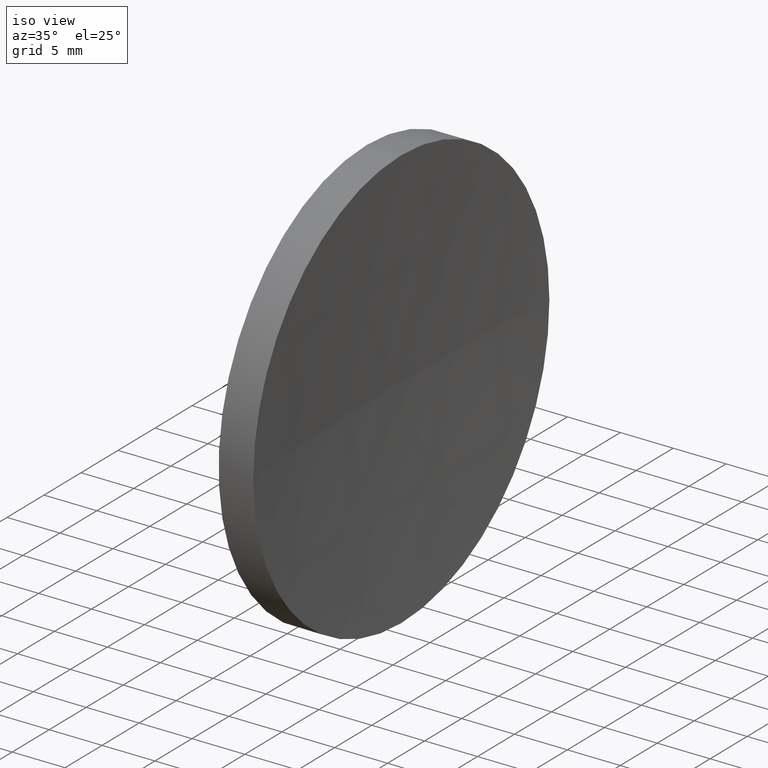
[diagram: clean part render]
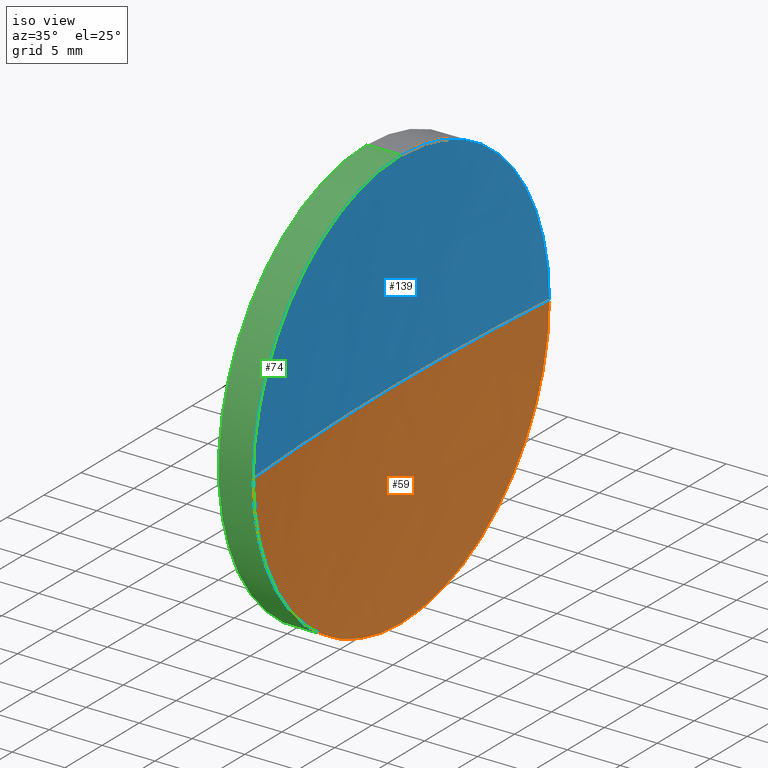
[diagram: same view with three faces highlighted in distinct colors, each labeled with its STEP entity id]
A machine part, iso view with three faces highlighted in distinct colors.
Their STEP definitions:

[orange] entity #59 — the highlighted spherical surface has radius 258.18 mm.
#5 = EDGE_LOOP ( 'NONE', ( #26, #124, #7, #47 ) ) ;
#7 = ORIENTED_EDGE ( 'NONE', *, *, #104, .F. ) ;
#11 = CARTESIAN_POINT ( 'NONE',  ( 117.1877506669351400, 65.15563045701519200, -20.00000000000000400 ) ) ;
#14 = FACE_OUTER_BOUND ( 'NONE', #5, .T. ) ;
#17 = AXIS2_PLACEMENT_3D ( 'NONE', #35, #71, #172 ) ;
#18 = CARTESIAN_POINT ( 'NONE',  ( 374.5919316741596400, 65.15563045701524900, 0.0000000000000000000 ) ) ;
#26 = ORIENTED_EDGE ( 'NONE', *, *, #51, .F. ) ;
#27 = CARTESIAN_POINT ( 'NONE',  ( 117.1877506669351400, 65.15563045701519200, 0.0000000000000000000 ) ) ;
#35 = CARTESIAN_POINT ( 'NONE',  ( 374.5919316741596400, 65.15563045701524900, 0.0000000000000000000 ) ) ;
#39 = DIRECTION ( 'NONE',  ( 0.0000000000000000000, 0.0000000000000000000, 1.000000000000000000 ) ) ;
#44 = SPHERICAL_SURFACE ( 'NONE', #65, 258.1799999999999500 ) ;
#47 = ORIENTED_EDGE ( 'NONE', *, *, #98, .F. ) ;
#51 = EDGE_CURVE ( 'NONE', #130, #140, #100, .T. ) ;
#53 = DIRECTION ( 'NONE',  ( 0.0000000000000000000, 0.0000000000000000000, 1.000000000000000000 ) ) ;
#56 = CIRCLE ( 'NONE', #111, 258.1799999999999500 ) ;
#59 = ADVANCED_FACE ( 'NONE', ( #14 ), #44, .F. ) ;
#65 = AXIS2_PLACEMENT_3D ( 'NONE', #103, #131, #114 ) ;
#67 = DIRECTION ( 'NONE',  ( -1.000000000000000000, -0.0000000000000000000, -0.0000000000000000000 ) ) ;
#71 = DIRECTION ( 'NONE',  ( 0.0000000000000000000, -1.224646799147353200E-016, 1.000000000000000000 ) ) ;
#73 = CARTESIAN_POINT ( 'NONE',  ( 117.1877506669351600, 85.15563045701502200, 2.449293598294677700E-015 ) ) ;
#86 = CIRCLE ( 'NONE', #17, 258.1799999999999500 ) ;
#98 = EDGE_CURVE ( 'NONE', #140, #109, #166, .T. ) ;
#100 = CIRCLE ( 'NONE', #112, 20.00000000000000400 ) ;
#103 = CARTESIAN_POINT ( 'NONE',  ( 374.5919316741596400, 65.15563045701524900, 0.0000000000000000000 ) ) ;
#104 = EDGE_CURVE ( 'NONE', #109, #183, #56, .T. ) ;
#109 = VERTEX_POINT ( 'NONE', #132 ) ;
#110 = EDGE_CURVE ( 'NONE', #130, #183, #86, .T. ) ;
#111 = AXIS2_PLACEMENT_3D ( 'NONE', #18, #182, #162 ) ;
#112 = AXIS2_PLACEMENT_3D ( 'NONE', #115, #67, #53 ) ;
#114 = DIRECTION ( 'NONE',  ( 0.0000000000000000000, -1.000000000000000000, 0.0000000000000000000 ) ) ;
#115 = CARTESIAN_POINT ( 'NONE',  ( 117.1877506669351400, 65.15563045701519200, 0.0000000000000000000 ) ) ;
#124 = ORIENTED_EDGE ( 'NONE', *, *, #110, .T. ) ;
#127 = CARTESIAN_POINT ( 'NONE',  ( 116.4119316741597000, 65.15563045701523500, 0.0000000000000000000 ) ) ;
#130 = VERTEX_POINT ( 'NONE', #73 ) ;
#131 = DIRECTION ( 'NONE',  ( 0.0000000000000000000, 0.0000000000000000000, 1.000000000000000000 ) ) ;
#132 = CARTESIAN_POINT ( 'NONE',  ( 117.1877506669351600, 45.15563045701542700, 0.0000000000000000000 ) ) ;
#140 = VERTEX_POINT ( 'NONE', #11 ) ;
#147 = DIRECTION ( 'NONE',  ( -1.000000000000000000, -0.0000000000000000000, -0.0000000000000000000 ) ) ;
#151 = AXIS2_PLACEMENT_3D ( 'NONE', #27, #147, #39 ) ;
#162 = DIRECTION ( 'NONE',  ( -1.000000000000000000, 0.0000000000000000000, 0.0000000000000000000 ) ) ;
#166 = CIRCLE ( 'NONE', #151, 20.00000000000000400 ) ;
#172 = DIRECTION ( 'NONE',  ( 0.0000000000000000000, -1.000000000000000000, -1.224646799147353200E-016 ) ) ;
#182 = DIRECTION ( 'NONE',  ( 0.0000000000000000000, 0.0000000000000000000, -1.000000000000000000 ) ) ;
#183 = VERTEX_POINT ( 'NONE', #127 ) ;

[blue] entity #139 — the highlighted spherical surface has radius 258.18 mm.
#15 = ORIENTED_EDGE ( 'NONE', *, *, #104, .T. ) ;
#16 = CARTESIAN_POINT ( 'NONE',  ( 374.5919316741596400, 65.15563045701524900, 0.0000000000000000000 ) ) ;
#17 = AXIS2_PLACEMENT_3D ( 'NONE', #35, #71, #172 ) ;
#18 = CARTESIAN_POINT ( 'NONE',  ( 374.5919316741596400, 65.15563045701524900, 0.0000000000000000000 ) ) ;
#19 = FACE_OUTER_BOUND ( 'NONE', #60, .T. ) ;
#25 = CIRCLE ( 'NONE', #38, 20.00000000000000400 ) ;
#29 = CARTESIAN_POINT ( 'NONE',  ( 117.1877506669351400, 65.15563045701519200, 20.00000000000000400 ) ) ;
#30 = CARTESIAN_POINT ( 'NONE',  ( 117.1877506669351400, 65.15563045701519200, 0.0000000000000000000 ) ) ;
#35 = CARTESIAN_POINT ( 'NONE',  ( 374.5919316741596400, 65.15563045701524900, 0.0000000000000000000 ) ) ;
#38 = AXIS2_PLACEMENT_3D ( 'NONE', #30, #62, #118 ) ;
#42 = ORIENTED_EDGE ( 'NONE', *, *, #133, .F. ) ;
#49 = SPHERICAL_SURFACE ( 'NONE', #155, 258.1799999999999500 ) ;
#54 = ORIENTED_EDGE ( 'NONE', *, *, #110, .F. ) ;
#56 = CIRCLE ( 'NONE', #111, 258.1799999999999500 ) ;
#60 = EDGE_LOOP ( 'NONE', ( #54, #84, #42, #15 ) ) ;
#62 = DIRECTION ( 'NONE',  ( -1.000000000000000000, -0.0000000000000000000, -0.0000000000000000000 ) ) ;
#63 = CIRCLE ( 'NONE', #149, 20.00000000000000400 ) ;
#71 = DIRECTION ( 'NONE',  ( 0.0000000000000000000, -1.224646799147353200E-016, 1.000000000000000000 ) ) ;
#73 = CARTESIAN_POINT ( 'NONE',  ( 117.1877506669351600, 85.15563045701502200, 2.449293598294677700E-015 ) ) ;
#84 = ORIENTED_EDGE ( 'NONE', *, *, #91, .F. ) ;
#86 = CIRCLE ( 'NONE', #17, 258.1799999999999500 ) ;
#91 = EDGE_CURVE ( 'NONE', #101, #130, #63, .T. ) ;
#96 = DIRECTION ( 'NONE',  ( 0.0000000000000000000, 0.0000000000000000000, 1.000000000000000000 ) ) ;
#97 = DIRECTION ( 'NONE',  ( 0.0000000000000000000, -1.000000000000000000, 0.0000000000000000000 ) ) ;
#101 = VERTEX_POINT ( 'NONE', #29 ) ;
#104 = EDGE_CURVE ( 'NONE', #109, #183, #56, .T. ) ;
#109 = VERTEX_POINT ( 'NONE', #132 ) ;
#110 = EDGE_CURVE ( 'NONE', #130, #183, #86, .T. ) ;
#111 = AXIS2_PLACEMENT_3D ( 'NONE', #18, #182, #162 ) ;
#117 = DIRECTION ( 'NONE',  ( -1.000000000000000000, -0.0000000000000000000, -0.0000000000000000000 ) ) ;
#118 = DIRECTION ( 'NONE',  ( 0.0000000000000000000, 0.0000000000000000000, 1.000000000000000000 ) ) ;
#127 = CARTESIAN_POINT ( 'NONE',  ( 116.4119316741597000, 65.15563045701523500, 0.0000000000000000000 ) ) ;
#130 = VERTEX_POINT ( 'NONE', #73 ) ;
#132 = CARTESIAN_POINT ( 'NONE',  ( 117.1877506669351600, 45.15563045701542700, 0.0000000000000000000 ) ) ;
#133 = EDGE_CURVE ( 'NONE', #109, #101, #25, .T. ) ;
#139 = ADVANCED_FACE ( 'NONE', ( #19 ), #49, .F. ) ;
#149 = AXIS2_PLACEMENT_3D ( 'NONE', #161, #117, #174 ) ;
#155 = AXIS2_PLACEMENT_3D ( 'NONE', #16, #96, #97 ) ;
#161 = CARTESIAN_POINT ( 'NONE',  ( 117.1877506669351400, 65.15563045701519200, 0.0000000000000000000 ) ) ;
#162 = DIRECTION ( 'NONE',  ( -1.000000000000000000, 0.0000000000000000000, 0.0000000000000000000 ) ) ;
#172 = DIRECTION ( 'NONE',  ( 0.0000000000000000000, -1.000000000000000000, -1.224646799147353200E-016 ) ) ;
#174 = DIRECTION ( 'NONE',  ( 0.0000000000000000000, 0.0000000000000000000, 1.000000000000000000 ) ) ;
#182 = DIRECTION ( 'NONE',  ( 0.0000000000000000000, 0.0000000000000000000, -1.000000000000000000 ) ) ;
#183 = VERTEX_POINT ( 'NONE', #127 ) ;

[green] entity #74 — the highlighted cylindrical surface (partial cylindrical patch) has radius 20 mm, axis along (-1, -0, -0).
#6 = EDGE_LOOP ( 'NONE', ( #168, #21, #88, #176, #143 ) ) ;
#8 = DIRECTION ( 'NONE',  ( -1.000000000000000000, -0.0000000000000000000, -0.0000000000000000000 ) ) ;
#11 = CARTESIAN_POINT ( 'NONE',  ( 117.1877506669351400, 65.15563045701519200, -20.00000000000000400 ) ) ;
#13 = LINE ( 'NONE', #184, #175 ) ;
#21 = ORIENTED_EDGE ( 'NONE', *, *, #98, .T. ) ;
#25 = CIRCLE ( 'NONE', #38, 20.00000000000000400 ) ;
#27 = CARTESIAN_POINT ( 'NONE',  ( 117.1877506669351400, 65.15563045701519200, 0.0000000000000000000 ) ) ;
#29 = CARTESIAN_POINT ( 'NONE',  ( 117.1877506669351400, 65.15563045701519200, 20.00000000000000400 ) ) ;
#30 = CARTESIAN_POINT ( 'NONE',  ( 117.1877506669351400, 65.15563045701519200, 0.0000000000000000000 ) ) ;
#37 = DIRECTION ( 'NONE',  ( -1.000000000000000000, -0.0000000000000000000, -0.0000000000000000000 ) ) ;
#38 = AXIS2_PLACEMENT_3D ( 'NONE', #30, #62, #118 ) ;
#39 = DIRECTION ( 'NONE',  ( 0.0000000000000000000, 0.0000000000000000000, 1.000000000000000000 ) ) ;
#41 = EDGE_CURVE ( 'NONE', #101, #164, #129, .T. ) ;
#55 = CARTESIAN_POINT ( 'NONE',  ( 105.6218371238301200, 65.15563045701519200, 0.0000000000000000000 ) ) ;
#61 = AXIS2_PLACEMENT_3D ( 'NONE', #169, #8, #157 ) ;
#62 = DIRECTION ( 'NONE',  ( -1.000000000000000000, -0.0000000000000000000, -0.0000000000000000000 ) ) ;
#64 = DIRECTION ( 'NONE',  ( -1.000000000000000000, -0.0000000000000000000, -0.0000000000000000000 ) ) ;
#66 = VECTOR ( 'NONE', #64, 1000.000000000000000 ) ;
#70 = CARTESIAN_POINT ( 'NONE',  ( 113.9119316741596200, 65.15563045701519200, -20.00000000000000400 ) ) ;
#74 = ADVANCED_FACE ( 'NONE', ( #142 ), #92, .T. ) ;
#81 = DIRECTION ( 'NONE',  ( -1.000000000000000000, -0.0000000000000000000, -0.0000000000000000000 ) ) ;
#83 = DIRECTION ( 'NONE',  ( 0.0000000000000000000, 0.0000000000000000000, 1.000000000000000000 ) ) ;
#88 = ORIENTED_EDGE ( 'NONE', *, *, #133, .T. ) ;
#92 = CYLINDRICAL_SURFACE ( 'NONE', #105, 20.00000000000000400 ) ;
#93 = EDGE_CURVE ( 'NONE', #140, #170, #13, .T. ) ;
#98 = EDGE_CURVE ( 'NONE', #140, #109, #166, .T. ) ;
#101 = VERTEX_POINT ( 'NONE', #29 ) ;
#105 = AXIS2_PLACEMENT_3D ( 'NONE', #55, #37, #83 ) ;
#109 = VERTEX_POINT ( 'NONE', #132 ) ;
#118 = DIRECTION ( 'NONE',  ( 0.0000000000000000000, 0.0000000000000000000, 1.000000000000000000 ) ) ;
#128 = CIRCLE ( 'NONE', #61, 20.00000000000000400 ) ;
#129 = LINE ( 'NONE', #152, #66 ) ;
#132 = CARTESIAN_POINT ( 'NONE',  ( 117.1877506669351600, 45.15563045701542700, 0.0000000000000000000 ) ) ;
#133 = EDGE_CURVE ( 'NONE', #109, #101, #25, .T. ) ;
#140 = VERTEX_POINT ( 'NONE', #11 ) ;
#142 = FACE_OUTER_BOUND ( 'NONE', #6, .T. ) ;
#143 = ORIENTED_EDGE ( 'NONE', *, *, #163, .F. ) ;
#147 = DIRECTION ( 'NONE',  ( -1.000000000000000000, -0.0000000000000000000, -0.0000000000000000000 ) ) ;
#151 = AXIS2_PLACEMENT_3D ( 'NONE', #27, #147, #39 ) ;
#152 = CARTESIAN_POINT ( 'NONE',  ( 105.6218371238301200, 65.15563045701519200, 20.00000000000000400 ) ) ;
#157 = DIRECTION ( 'NONE',  ( 0.0000000000000000000, 0.0000000000000000000, 1.000000000000000000 ) ) ;
#158 = CARTESIAN_POINT ( 'NONE',  ( 113.9119316741596200, 65.15563045701519200, 20.00000000000000400 ) ) ;
#163 = EDGE_CURVE ( 'NONE', #170, #164, #128, .T. ) ;
#164 = VERTEX_POINT ( 'NONE', #158 ) ;
#166 = CIRCLE ( 'NONE', #151, 20.00000000000000400 ) ;
#168 = ORIENTED_EDGE ( 'NONE', *, *, #93, .F. ) ;
#169 = CARTESIAN_POINT ( 'NONE',  ( 113.9119316741596200, 65.15563045701519200, 0.0000000000000000000 ) ) ;
#170 = VERTEX_POINT ( 'NONE', #70 ) ;
#175 = VECTOR ( 'NONE', #81, 1000.000000000000000 ) ;
#176 = ORIENTED_EDGE ( 'NONE', *, *, #41, .T. ) ;
#184 = CARTESIAN_POINT ( 'NONE',  ( 105.6218371238301200, 65.15563045701519200, -20.00000000000000400 ) ) ;